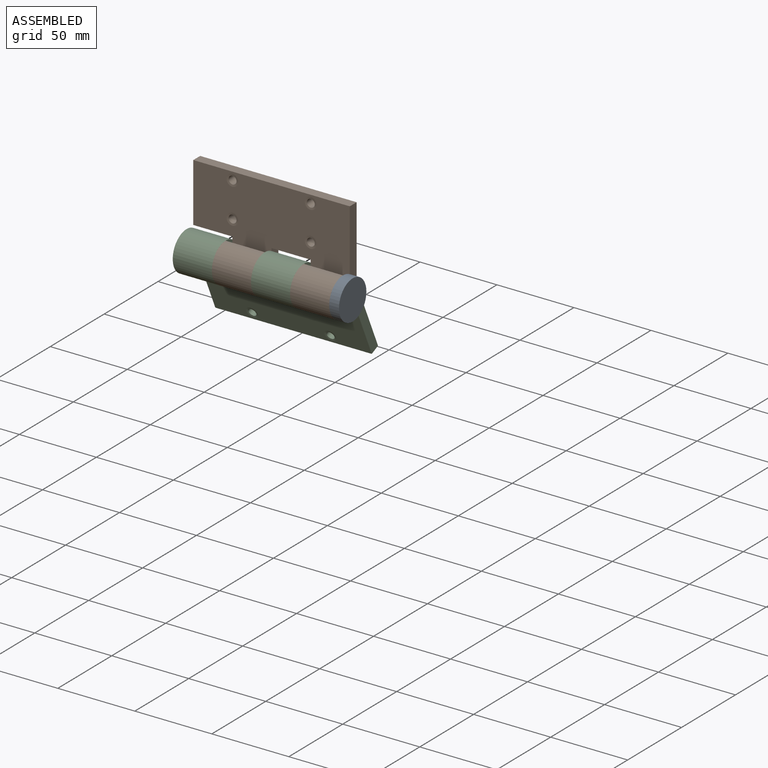
[diagram: assembled view]
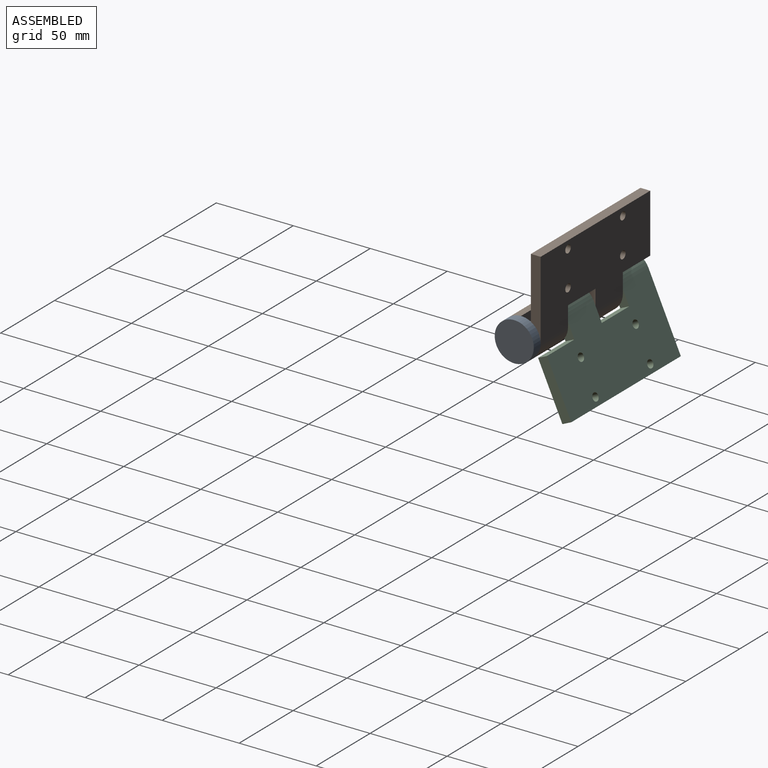
[diagram: assembled view, second angle]
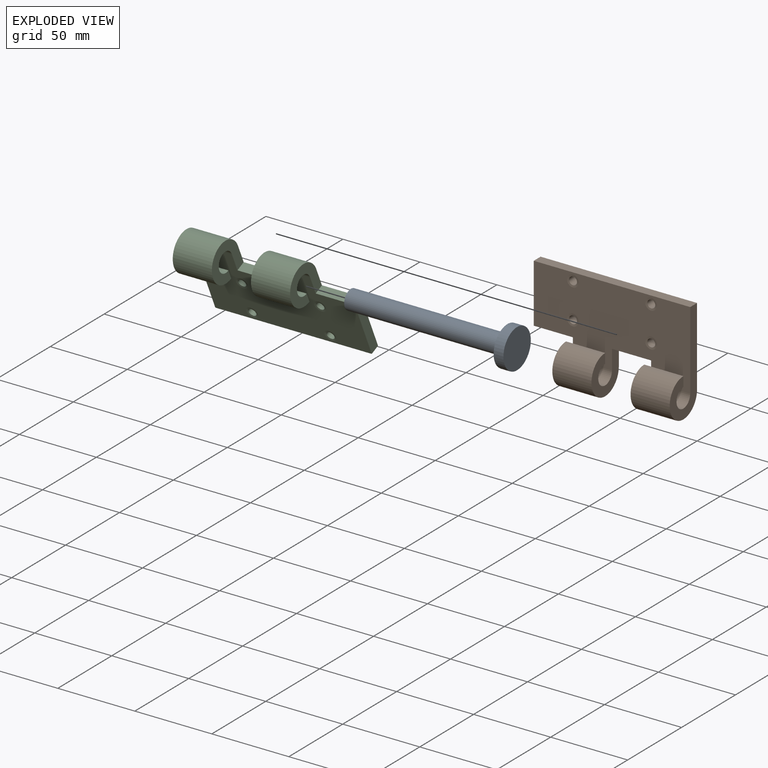
[diagram: exploded view]
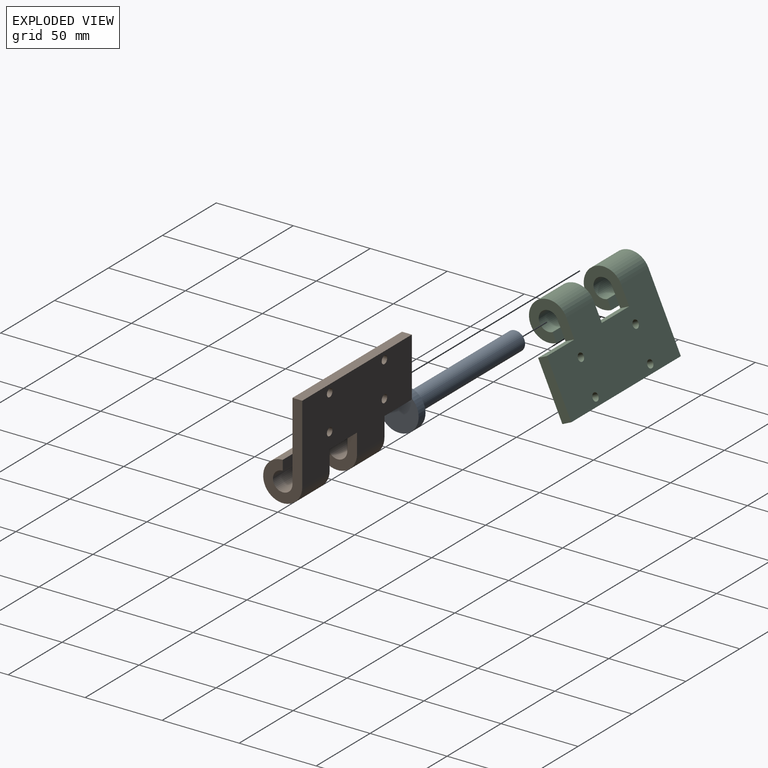
[diagram: exploded view, second angle]
ASSEMBLY  parts=3 mates=2
PART A: 5 faces, bbox 25.4x25.4x108 mm
  f0: cylinder r=12.7mm len=25.4mm, axis (0,0,-1), area 506.7mm2, adj f1,f2
  f1: plane 25.4x25.4mm, normal (0,0,1), area 385mm2, adj f0,f3
  f2: plane 25.4x25.4mm, normal (0,0,-1), area 506.7mm2, adj f0
  f3: cylinder r=6.22mm len=101.6mm, axis (0,0,-1), area 3972.6mm2, adj f1,f4
  f4: plane 12.45x12.45mm, normal (0,0,1), area 121.7mm2, adj f3
PART B: 24 faces, bbox 63.5x101.6x25.4 mm
  f0: plane 25.4x6.35mm, normal (0,0,-1), area 161.3mm2, adj f1,f4,f10,f11
  f1: cylinder r=12.7mm len=25.4mm, axis (0,1,0), area 1520.1mm2, adj f0,f2,f10,f11
  f2: plane 101.6x50.8mm, normal (0,0,-1), area 4434.2mm2, adj f1,f5,f7,f8,f10,f11,f12,f13
  f3: plane 101.6x50.8mm, normal (0,0,1), area 4334.9mm2, adj f4,f5,f8,f9,f10,f11,f12,f13
  f4: cylinder r=6.35mm len=25.4mm, axis (0,1,0), area 760.1mm2, adj f0,f3,f10,f11
  f5: plane 38.1x6.35mm, normal (0,1,0), area 241.9mm2, adj f2,f3,f8,f15
  f6: plane 25.4x6.35mm, normal (0,0,-1), area 161.3mm2, adj f7,f9,f12,f14
  f7: cylinder r=12.7mm len=25.4mm, axis (0,1,0), area 1520.1mm2, adj f2,f6,f12,f14
  f8: plane 101.6x6.35mm, normal (1,0,0), area 645.2mm2, adj f2,f3,f5,f10
  f9: cylinder r=6.35mm len=25.4mm, axis (0,1,0), area 760.1mm2, adj f3,f6,f12,f14
  f10: plane 63.5x25.4mm, normal (0,-1,0), area 607.6mm2, adj f0,f1,f2,f3,f4,f8
  f11: plane 25.4x25.4mm, normal (0,1,0), area 365.7mm2, adj f0,f1,f2,f3,f4,f13
  f12: plane 25.4x25.4mm, normal (0,-1,0), area 365.7mm2, adj f2,f3,f6,f7,f9,f13
  f13: plane 25.4x6.35mm, normal (-1,0,0), area 161.3mm2, adj f2,f3,f11,f12
  f14: plane 25.4x25.4mm, normal (0,1,0), area 365.7mm2, adj f2,f3,f6,f7,f9,f15
  f15: plane 25.4x6.35mm, normal (-1,0,0), area 161.3mm2, adj f2,f3,f5,f14
  f16: cylinder r=2.55mm len=6.18mm, axis (0,0,1), area 99mm2, adj f2,f23
  f17: cylinder r=2.55mm len=6.18mm, axis (0,0,1), area 99mm2, adj f2,f21
  f18: cylinder r=2.55mm len=6.18mm, axis (0,0,1), area 99mm2, adj f2,f20
  f19: cylinder r=2.55mm len=6.18mm, axis (0,0,1), area 99mm2, adj f2,f22
  f20: cone r=2.55mm half-angle=82deg, axis (0,0,1), area 25.1mm2, adj f3,f18
  f21: cone r=2.55mm half-angle=82deg, axis (0,0,1), area 25.1mm2, adj f3,f17
  f22: cone r=2.55mm half-angle=82deg, axis (0,0,1), area 25.1mm2, adj f3,f19
  f23: cone r=2.55mm half-angle=82deg, axis (0,0,1), area 25.1mm2, adj f3,f16
PART C: same geometry as B
PLACE A rot(axis=(0.64,-0.41,-0.64),135.3deg) t=(55.3,38.72,-18.11)mm
PLACE B rot(axis=(0.58,-0.58,0.58),120deg) t=(-52.65,0,-2.61)mm
PLACE C rot(axis=(0.64,0.64,-0.41),135deg) t=(48.95,9.37,-45.88)mm
MATE revolute A.f0 <-> C.f1  axis (-1,0,0) through (-52.65,-12.7,-28.01)mm
MATE revolute B.f1 <-> C.f1  axis (-1,0,0) through (23.55,-12.7,-28.01)mm
